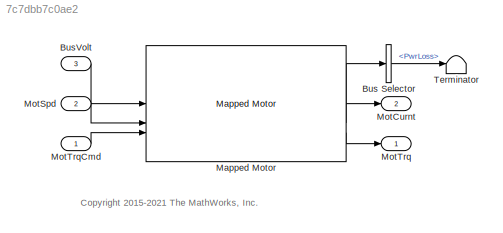
MODEL slx_7c7dbb7c0ae2
KIND model
CONFIG AbsTol = auto
CONFIG EnableMultiTasking = off
CONFIG FixedStep = auto
CONFIG MaxStep = auto
CONFIG MinStep = auto
CONFIG RelTol = 1e-3
CONFIG SampleTimeConstraint = Unconstrained
CONFIG SolverName = VariableStepAuto
CONFIG StartTime = 0.0
CONFIG StopTime = 10.0
WORKSPACE source: mxarray member
WORKSPACE EV_current = 200
WORKSPACE EV_motion = [20 4 0.8]
WORKSPACE EV_sf = 2000
WORKSPACE Fs = 0
WORKSPACE Fv = 0.0025
WORKSPACE Jcomp = 0.0227
WORKSPACE Ki = 251.3274
WORKSPACE Kisa = 346.6583
WORKSPACE Kp_d = 0.47149
WORKSPACE Kp_q = 0.52125
WORKSPACE Ksa = 85.4316
WORKSPACE Ksf = 1996.2651
WORKSPACE Ld = 0.0003752
WORKSPACE Ldq = [0.0003752 0.0004148]
WORKSPACE Lq = 0.0004148
WORKSPACE Mechanical = [0.0227 0.0025 0]
WORKSPACE P = 4
WORKSPACE PolePairs = 4
WORKSPACE Rs = 0.2
WORKSPACE T_eff_bp = [0 32.1428571429 64.2857142857 96.4285714286 128.571428571 160.714285714 192.857142857 225 257.142857143 289.285714286 321.428571429 353.571428571 ... (15 elements, 1x15)]
WORKSPACE T_max = 120
WORKSPACE T_mtpa = [0 13.3131834767 26.6278836885 39.9456159322 53.2678926341 66.5962219318 79.9321062746 93.277041051 106.632513247 120.000000141]
WORKSPACE Tc = 0.02
WORKSPACE ba = 3.4029
WORKSPACE efficiency_table = [86.7 86.7 86.7 86.7 86.7 86.7 86.7 86.7 86.7 86.7 86.7 86.7 ... (180 elements, 12x15)]
WORKSPACE id_mtpa = [0 -0.114523352646 -0.457989076459 -1.03008464374 -1.83029075221 -2.85788367342 -4.11193850568 -5.59133329791 -7.29475400168 -9.22070020138]
WORKSPACE idq0 = [0 0]
WORKSPACE idq_limits = [-9.220699542 166.993501392 167.247872355]
WORKSPACE iq_mtpa = [0 18.5827440345 37.1633719111 55.7397734896 74.3098506185 92.871523015 111.422734008 129.961456105 148.485696337 166.993501356]
WORKSPACE lambda_pm = 0.1194
WORKSPACE losses_table = [0 0 0 0 0 0 0 0 0 0 0 0 ... (180 elements, 12x15)]
WORKSPACE mechanical = [0.0227 0.0025 0]
WORKSPACE omega_init = 0
WORKSPACE power_max = 211000
WORKSPACE theta_init = 0
WORKSPACE torque_max = 450
WORKSPACE w_eff_bp = [0 1600 3200 4477.56 4800 6400 8000 9600 11200 12800 14400 16000]
BLOCK [BusSelector] Bus Selector
  OutputSignals = PwrLoss
BLOCK [Inport] BusVolt
  Port = 3
BLOCK [Reference] Mapped Motor  REF=autolibmappedmotor/Mapped Motor
  SourceBlock = autolibmappedmotor/Mapped Motor
  SourceType = MappedMotor
BLOCK [Outport] MotCurnt
  Port = 2
  VectorParamsAs1DForOutWhenUnconnected = off
BLOCK [Inport] MotSpd
  Port = 2
BLOCK [Outport] MotTrq
  VectorParamsAs1DForOutWhenUnconnected = off
BLOCK [Inport] MotTrqCmd
BLOCK [Terminator] Terminator
ANNOTATION (root): <copyright redacted>
LINE Bus Selector:1 -> Terminator:1
LINE BusVolt:1 -> Mapped Motor:1
LINE Mapped Motor:1 -> Bus Selector:1
LINE Mapped Motor:2 -> MotCurnt:1
LINE Mapped Motor:3 -> MotTrq:1
LINE MotSpd:1 -> Mapped Motor:2
LINE MotTrqCmd:1 -> Mapped Motor:3
